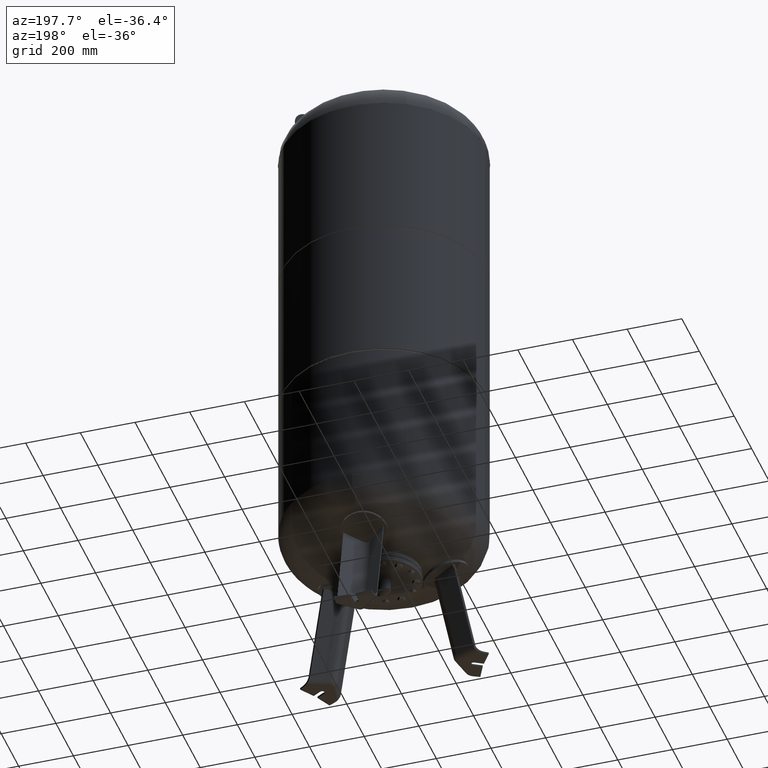
[diagram: clean part render]
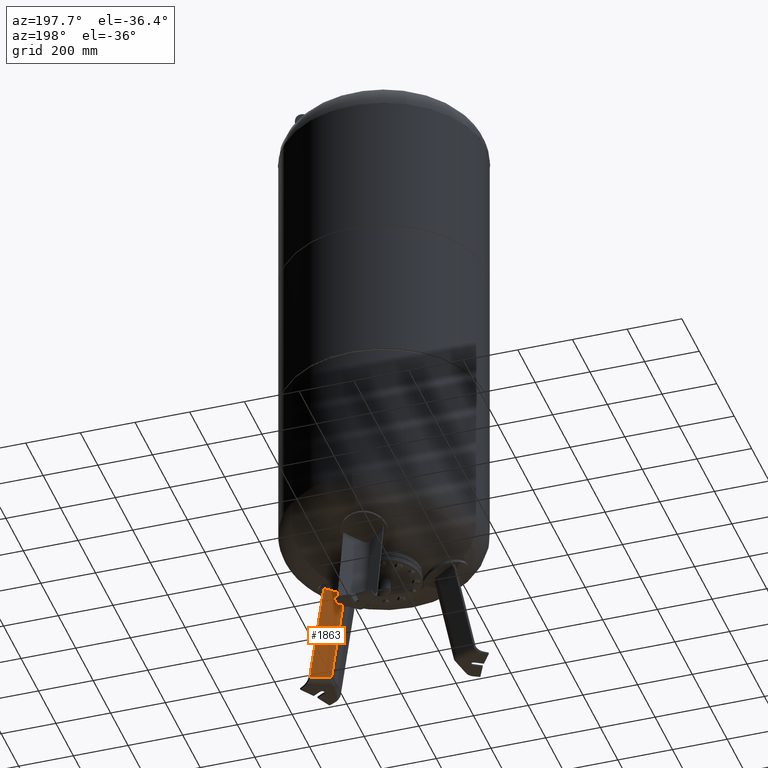
[diagram: same view with one face highlighted and labeled with its STEP entity id]
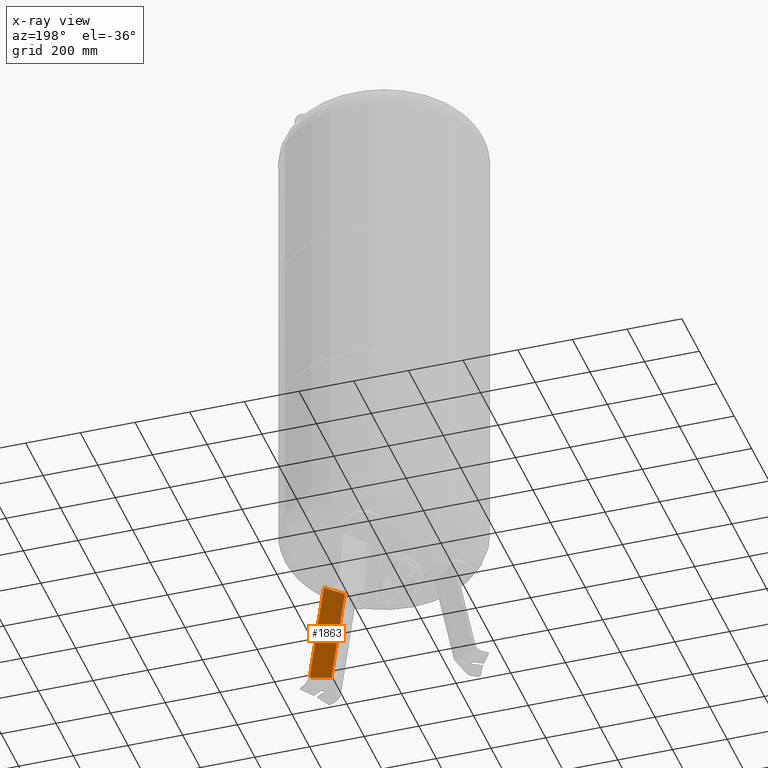
[diagram: x-ray of the same camera — body ghosted, the highlighted face saturated]
A machine part, auxiliary view. The second image highlights one B-rep face of the part: STEP entity #1863.
The next image is the same camera in x-ray: the body ghosted, the highlighted face saturated — about 5% of this face is hidden behind the body in this view.
In plain terms, the highlighted planar face has unit normal (-0.3243, 0.9325, -0.1588).
Its self-contained STEP definition (entity closure, byte-faithful):
#1180=CARTESIAN_POINT('',(228.446542867102490,-113.260904562808160,21.029948423057281));
#1181=VERTEX_POINT('',#1180);
#1248=CARTESIAN_POINT('',(235.867665870318230,-51.307770812481834,369.683830982885010));
#1249=VERTEX_POINT('',#1248);
#1257=CARTESIAN_POINT('',(168.629558662939640,-78.725552630423067,345.982061508122970));
#1258=VERTEX_POINT('',#1257);
#1259=CARTESIAN_POINT('',(168.629558662939640,-78.725552630423067,345.982061508122970));
#1260=CARTESIAN_POINT('',(171.916953450706440,-77.416967662112341,346.953435462919860));
#1261=CARTESIAN_POINT('',(175.206603742219930,-76.102127684768305,347.956934926011120));
#1262=CARTESIAN_POINT('',(185.226738944397880,-72.082256563316335,351.101192125903480));
#1263=CARTESIAN_POINT('',(191.964173633378810,-69.358966146401457,353.334982197884360));
#1264=CARTESIAN_POINT('',(211.101980844404300,-61.570850509133450,359.988747504562350));
#1265=CARTESIAN_POINT('',(223.507500250927080,-56.459906333785014,364.669037481009410));
#1266=CARTESIAN_POINT('',(235.867665870318230,-51.307770812481834,369.683830982885010));
#1267=B_SPLINE_CURVE_WITH_KNOTS('',3,(#1259,#1260,#1261,#1262,#1263,#1264,#1265,#1266),.UNSPECIFIED.,.F.,.U.,(4,2,2,4),(5.453253502265779,6.515864870681246,8.687819827574995,12.681292855444173),.UNSPECIFIED.);
#1268=EDGE_CURVE('',#1258,#1249,#1267,.T.);
#1346=CARTESIAN_POINT('',(300.047657155193120,-88.362106057392310,21.029948423057284));
#1347=VERTEX_POINT('',#1346);
#1348=CARTESIAN_POINT('',(228.446542867102490,-113.260904562808160,21.029948423057281));
#1349=DIRECTION('',(0.944521094592692,0.328450760190053,4.686537E-017));
#1350=VECTOR('',#1349,75.806792138366561);
#1351=LINE('',#1348,#1350);
#1352=EDGE_CURVE('',#1181,#1347,#1351,.T.);
#1828=CARTESIAN_POINT('',(300.047657155193120,-88.362106057392310,21.029948423057284));
#1829=DIRECTION('',(-0.180056805991955,0.103955845408880,0.978147600733806));
#1830=VECTOR('',#1829,356.443017698216290);
#1831=LINE('',#1828,#1830);
#1832=EDGE_CURVE('',#1347,#1249,#1831,.T.);
#1847=CARTESIAN_POINT('',(224.644894962710790,-129.698790578796290,-67.735293817669458));
#1848=DIRECTION('',(-0.324282864533176,0.932535537409927,-0.158802063077709));
#1849=DIRECTION('',(0.180056805991956,-0.103955845408880,-0.978147600733806));
#1850=AXIS2_PLACEMENT_3D('',#1847,#1848,#1849);
#1851=PLANE('',#1850);
#1852=CARTESIAN_POINT('',(168.629558662939640,-78.725552630423067,345.982061508122970));
#1853=DIRECTION('',(0.180056805991956,-0.103955845408880,-0.978147600733805));
#1854=VECTOR('',#1853,332.211736594034330);
#1855=LINE('',#1852,#1854);
#1856=EDGE_CURVE('',#1258,#1181,#1855,.T.);
#1857=ORIENTED_EDGE('',*,*,#1856,.F.);
#1858=ORIENTED_EDGE('',*,*,#1268,.T.);
#1859=ORIENTED_EDGE('',*,*,#1832,.F.);
#1860=ORIENTED_EDGE('',*,*,#1352,.F.);
#1861=EDGE_LOOP('',(#1857,#1858,#1859,#1860));
#1862=FACE_OUTER_BOUND('',#1861,.T.);
#1863=ADVANCED_FACE('',(#1862),#1851,.T.);